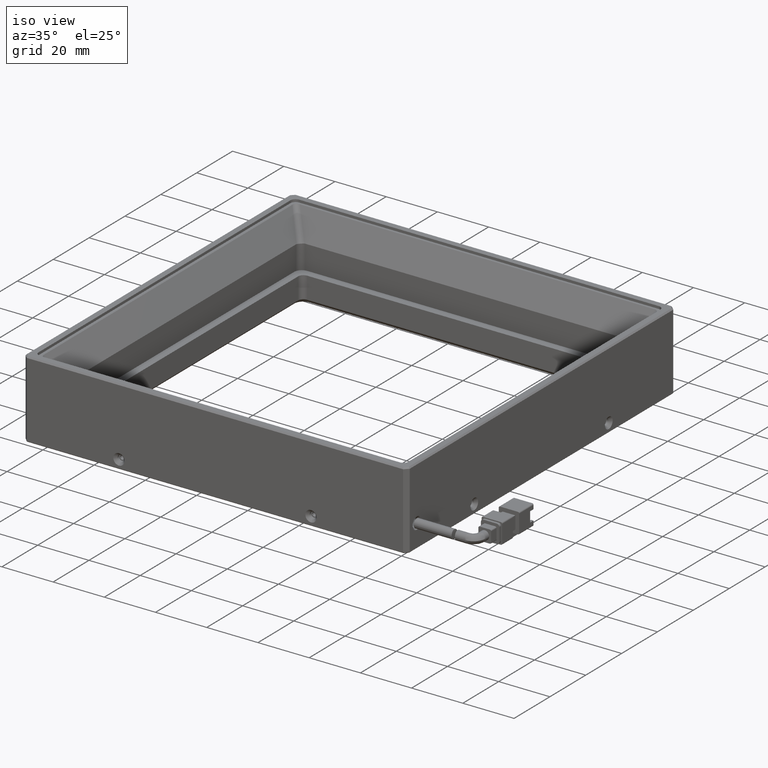
[diagram: clean part render]
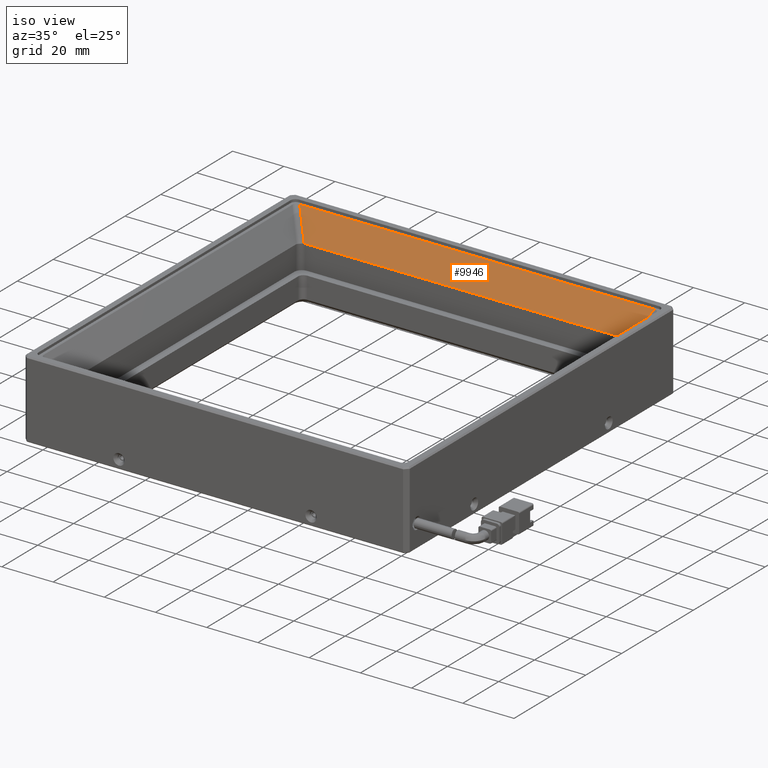
[diagram: same view with one face highlighted and labeled with its STEP entity id]
A machine part, iso view. The second image highlights one B-rep face of the part: STEP entity #9946.
In plain terms, the highlighted planar face has unit normal (0, -0.866, 0.5).
Its self-contained STEP definition (entity closure, byte-faithful):
#230 = CARTESIAN_POINT ( 'NONE',  ( 53.62025796564257300, 76.13344006966069300, 14.12649537406651500 ) ) ;
#336 = CARTESIAN_POINT ( 'NONE',  ( 53.36824938067709200, 76.14938067712634500, 14.15410531610055700 ) ) ;
#739 = CARTESIAN_POINT ( 'NONE',  ( -73.11603343671753000, 76.14938067712634500, 14.15410531610056200 ) ) ;
#1235 = DIRECTION ( 'NONE',  ( 0.4472135954999585400, 0.4472135954999564800, 0.7745966692414838500 ) ) ;
#1734 = PLANE ( 'NONE',  #17765 ) ;
#1841 = CARTESIAN_POINT ( 'NONE',  ( 59.43619857310823600, 81.94938067712632800, 24.20000000000006300 ) ) ;
#2277 = LINE ( 'NONE', #17177, #6491 ) ;
#2455 = CARTESIAN_POINT ( 'NONE',  ( 53.53664690790205300, 76.14406006643494600, 14.14488974805572700 ) ) ;
#4580 =( BOUNDED_CURVE ( )  B_SPLINE_CURVE ( 3, ( #8508, #8604, #2455, #8405 ),
 .UNSPECIFIED., .F., .T. ) 
 B_SPLINE_CURVE_WITH_KNOTS ( ( 4, 4 ),
 ( 3.141592653589793100, 3.267932781160842300 ),
 .UNSPECIFIED. ) 
 CURVE ( )  GEOMETRIC_REPRESENTATION_ITEM ( )  RATIONAL_B_SPLINE_CURVE ( ( 1.000000000000000000, 0.9986702899479105200, 0.9986702899479105200, 1.000000000000000000 ) ) 
 REPRESENTATION_ITEM ( '' )  );
#5311 = EDGE_CURVE ( 'NONE', #5370, #18358, #16729, .T. ) ;
#5370 = VERTEX_POINT ( 'NONE', #17951 ) ;
#5590 = CARTESIAN_POINT ( 'NONE',  ( 55.36824938067709200, 76.14938067712634500, 14.15410531610057300 ) ) ;
#5725 = DIRECTION ( 'NONE',  ( -1.000000000000000000, -7.978533672646613200E-017, -6.938351866336849100E-019 ) ) ;
#5886 = ORIENTED_EDGE ( 'NONE', *, *, #16336, .F. ) ;
#6491 = VECTOR ( 'NONE', #9301, 1000.000000000000200 ) ;
#7225 = EDGE_CURVE ( 'NONE', #19447, #5370, #4580, .T. ) ;
#7625 = CARTESIAN_POINT ( 'NONE',  ( 63.16824938067708200, 81.94938067712632800, 24.20000000000006700 ) ) ;
#7701 = VERTEX_POINT ( 'NONE', #9535 ) ;
#8082 = CARTESIAN_POINT ( 'NONE',  ( -80.83175061932293200, 81.94938067712632800, 24.20000000000006700 ) ) ;
#8405 = CARTESIAN_POINT ( 'NONE',  ( 53.62025796564257300, 76.13344006966069300, 14.12649537406652000 ) ) ;
#8508 = CARTESIAN_POINT ( 'NONE',  ( 53.36824938067709200, 76.14938067712634500, 14.15410531610055700 ) ) ;
#8531 = ORIENTED_EDGE ( 'NONE', *, *, #13523, .T. ) ;
#8604 = CARTESIAN_POINT ( 'NONE',  ( 53.45253219807170100, 76.14938067712634500, 14.15410531610054300 ) ) ;
#8800 = EDGE_LOOP ( 'NONE', ( #19866, #15365, #11264, #19692, #8531, #5886 ) ) ;
#9025 = VECTOR ( 'NONE', #5725, 1000.000000000000000 ) ;
#9301 = DIRECTION ( 'NONE',  ( 0.4472135954999562100, -0.4472135954999571500, -0.7745966692414847400 ) ) ;
#9535 = CARTESIAN_POINT ( 'NONE',  ( -79.09969981175405000, 81.94938067712631400, 24.20000000000006700 ) ) ;
#9653 = DIRECTION ( 'NONE',  ( 4.049354726089724100E-017, -0.4999999999999986700, -0.8660254037844393700 ) ) ;
#9707 = CARTESIAN_POINT ( 'NONE',  ( -73.03175061932292100, 76.14938067712634500, 14.15410531610056700 ) ) ;
#9873 =( BOUNDED_CURVE ( )  B_SPLINE_CURVE ( 3, ( #18071, #10215, #739, #11756 ),
 .UNSPECIFIED., .F., .T. ) 
 B_SPLINE_CURVE_WITH_KNOTS ( ( 4, 4 ),
 ( 3.015252526018744400, 3.141592653589793100 ),
 .UNSPECIFIED. ) 
 CURVE ( )  GEOMETRIC_REPRESENTATION_ITEM ( )  RATIONAL_B_SPLINE_CURVE ( ( 1.000000000000000000, 0.9986702899479105200, 0.9986702899479105200, 1.000000000000000000 ) ) 
 REPRESENTATION_ITEM ( '' )  );
#9946 = ADVANCED_FACE ( 'NONE', ( #16268 ), #1734, .T. ) ;
#10215 = CARTESIAN_POINT ( 'NONE',  ( -73.20014814654786100, 76.14406006643494600, 14.14488974805574800 ) ) ;
#10634 = LINE ( 'NONE', #7625, #14816 ) ;
#10900 = DIRECTION ( 'NONE',  ( -1.000000000000000000, -7.978533672646613200E-017, -6.938351866336849100E-019 ) ) ;
#11264 = ORIENTED_EDGE ( 'NONE', *, *, #18206, .T. ) ;
#11756 = CARTESIAN_POINT ( 'NONE',  ( -73.03175061932292100, 76.14938067712634500, 14.15410531610056700 ) ) ;
#12495 = VECTOR ( 'NONE', #1235, 1000.000000000000000 ) ;
#13175 = CARTESIAN_POINT ( 'NONE',  ( -73.28375920428840100, 76.13344006966066500, 14.12649537406651700 ) ) ;
#13523 = EDGE_CURVE ( 'NONE', #17653, #14806, #9873, .T. ) ;
#14806 = VERTEX_POINT ( 'NONE', #9707 ) ;
#14816 = VECTOR ( 'NONE', #10900, 1000.000000000000000 ) ;
#15365 = ORIENTED_EDGE ( 'NONE', *, *, #5311, .T. ) ;
#16268 = FACE_OUTER_BOUND ( 'NONE', #8800, .T. ) ;
#16336 = EDGE_CURVE ( 'NONE', #19447, #14806, #17438, .T. ) ;
#16729 = LINE ( 'NONE', #230, #12495 ) ;
#17177 = CARTESIAN_POINT ( 'NONE',  ( -79.09969981175405000, 81.94938067712632800, 24.20000000000006700 ) ) ;
#17438 = LINE ( 'NONE', #5590, #9025 ) ;
#17653 = VERTEX_POINT ( 'NONE', #13175 ) ;
#17765 = AXIS2_PLACEMENT_3D ( 'NONE', #8082, #19102, #9653 ) ;
#17951 = CARTESIAN_POINT ( 'NONE',  ( 53.62025796564257300, 76.13344006966069300, 14.12649537406652000 ) ) ;
#18071 = CARTESIAN_POINT ( 'NONE',  ( -73.28375920428840100, 76.13344006966066500, 14.12649537406651700 ) ) ;
#18192 = EDGE_CURVE ( 'NONE', #7701, #17653, #2277, .T. ) ;
#18206 = EDGE_CURVE ( 'NONE', #18358, #7701, #10634, .T. ) ;
#18358 = VERTEX_POINT ( 'NONE', #1841 ) ;
#19102 = DIRECTION ( 'NONE',  ( 1.533866530436736900E-016, -0.8660254037844394800, 0.4999999999999987200 ) ) ;
#19447 = VERTEX_POINT ( 'NONE', #336 ) ;
#19692 = ORIENTED_EDGE ( 'NONE', *, *, #18192, .T. ) ;
#19866 = ORIENTED_EDGE ( 'NONE', *, *, #7225, .T. ) ;